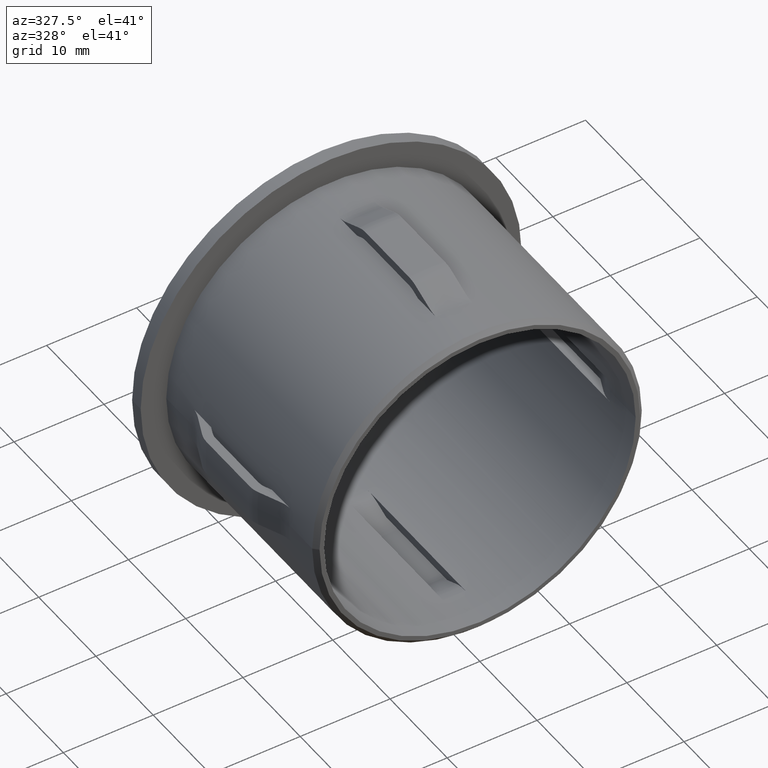
[diagram: clean part render]
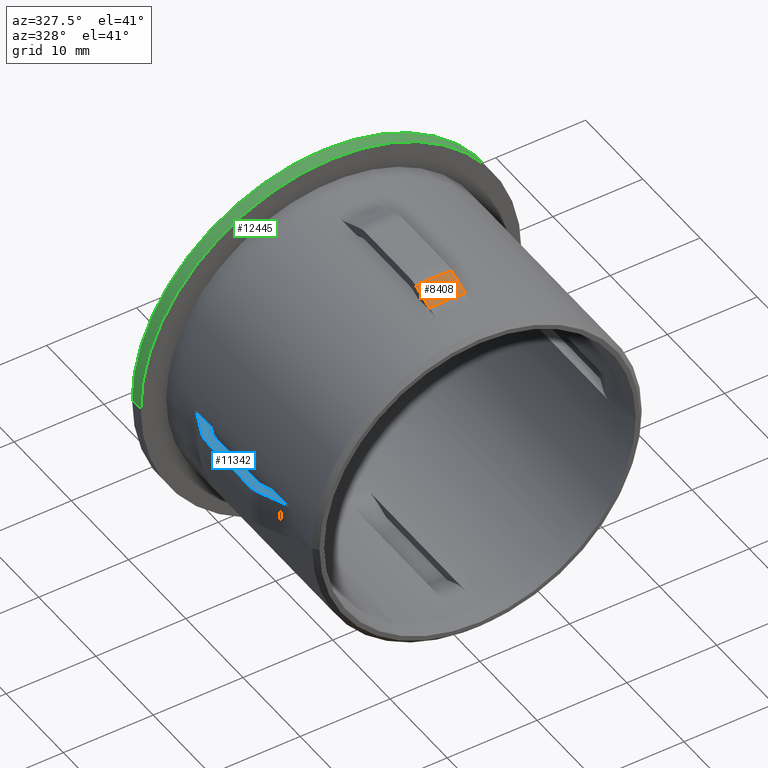
[diagram: same view with three faces highlighted in distinct colors, each labeled with its STEP entity id]
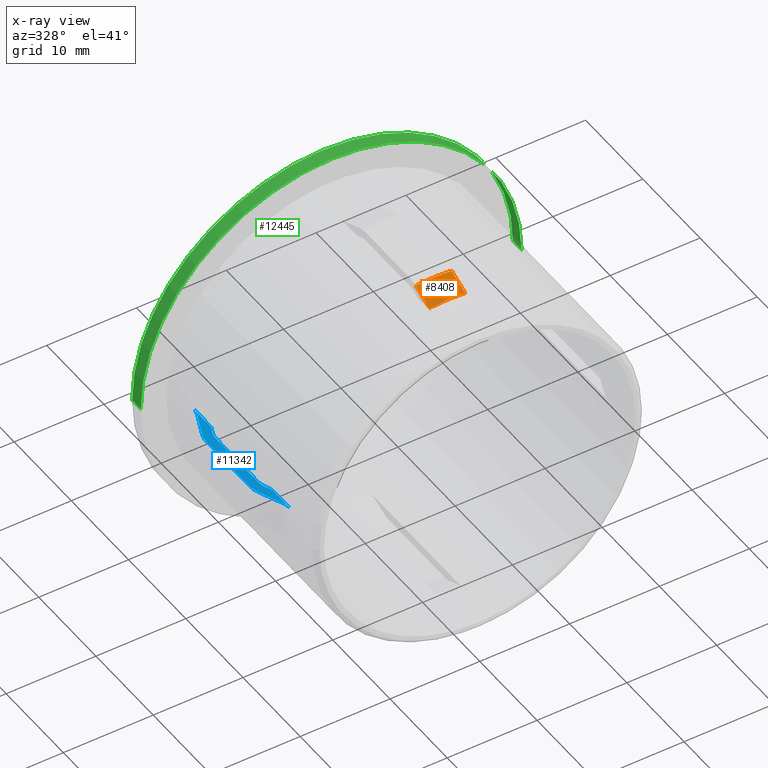
[diagram: x-ray of the same camera — body ghosted, the three highlighted faces saturated]
A machine part, auxiliary view with three faces highlighted in distinct colors.
The next image is the same camera in x-ray (body ghosted, the three faces saturated) — at least one of them is partly hidden behind the body in this view.
Their STEP definitions:

[orange] entity #8408 — the highlighted conical surface has half-angle 23.039 deg.
#112 = AXIS2_PLACEMENT_3D ( 'NONE', #11371, #1680, #2889 ) ;
#718 = DIRECTION ( 'NONE',  ( 1.421951005676655478E-15, -1.000000000000000000, -0.000000000000000000 ) ) ;
#753 = VERTEX_POINT ( 'NONE', #1503 ) ;
#1065 = CARTESIAN_POINT ( 'NONE',  ( 1.999999999999996669, 5.674048829954469575, 18.48137167821506921 ) ) ;
#1503 = CARTESIAN_POINT ( 'NONE',  ( -1.999999999999995337, 8.075951170045476246, 19.50847465759430577 ) ) ;
#1680 = DIRECTION ( 'NONE',  ( 1.421951005676655478E-15, -1.000000000000000000, -0.000000000000000000 ) ) ;
#1785 = CARTESIAN_POINT ( 'NONE',  ( 1.999999999999996669, 5.674048829954469575, 18.48137167821506921 ) ) ;
#2072 = CARTESIAN_POINT ( 'NONE',  ( -1.999999999999996225, 6.668400739142593459, 18.90667869736101281 ) ) ;
#2388 = DIRECTION ( 'NONE',  ( -1.421951005676655478E-15, 1.000000000000000000, 0.000000000000000000 ) ) ;
#2889 = DIRECTION ( 'NONE',  ( 1.000000000000000000, 1.399777768011121367E-15, 0.000000000000000000 ) ) ;
#4010 = AXIS2_PLACEMENT_3D ( 'NONE', #10321, #718, #8610 ) ;
#4263 = CARTESIAN_POINT ( 'NONE',  ( 1.999999999999995781, 7.372162904321253762, 19.20760720947872002 ) ) ;
#4347 = CARTESIAN_POINT ( 'NONE',  ( -1.999999999999996669, 5.674048829954464246, 18.48137167821506210 ) ) ;
#4803 = EDGE_CURVE ( 'NONE', #9766, #753, #11821, .T. ) ;
#4999 = ORIENTED_EDGE ( 'NONE', *, *, #8038, .T. ) ;
#5030 = AXIS2_PLACEMENT_3D ( 'NONE', #10912, #2388, #9606 ) ;
#5311 = CARTESIAN_POINT ( 'NONE',  ( 1.999999999999996669, 5.964668680227572573, 18.60567980440304936 ) ) ;
#5333 = ORIENTED_EDGE ( 'NONE', *, *, #15048, .F. ) ;
#5480 = CONICAL_SURFACE ( 'NONE', #5030, 18.58927376495193329, 0.4020977176402726339 ) ;
#6384 = CARTESIAN_POINT ( 'NONE',  ( -1.999999999999996669, 5.674048829954464246, 18.48137167821506210 ) ) ;
#6522 = B_SPLINE_CURVE_WITH_KNOTS ( 'NONE', 3,
 ( #15003, #8761, #2072, #15215, #7805, #15108, #4347 ),
 .UNSPECIFIED., .F., .F.,
 ( 4, 3, 4 ),
 ( 0.003137644363076629288, 0.005433848236068784116, 0.005749937470003458999 ),
 .UNSPECIFIED. ) ;
#7551 = FACE_OUTER_BOUND ( 'NONE', #11266, .T. ) ;
#7805 = CARTESIAN_POINT ( 'NONE',  ( -1.999999999999996669, 5.867794821283117912, 18.56424510787408266 ) ) ;
#8038 = EDGE_CURVE ( 'NONE', #753, #13363, #6522, .T. ) ;
#8408 = ADVANCED_FACE ( 'NONE', ( #7551 ), #5480, .T. ) ;
#8532 = EDGE_CURVE ( 'NONE', #9766, #15489, #12595, .T. ) ;
#8610 = DIRECTION ( 'NONE',  ( 1.000000000000000000, 1.415326249673741082E-15, 0.000000000000000000 ) ) ;
#8761 = CARTESIAN_POINT ( 'NONE',  ( -1.999999999999995781, 7.372162904321250210, 19.20760720947870936 ) ) ;
#9057 = CARTESIAN_POINT ( 'NONE',  ( 1.999999999999995337, 8.075951170045483352, 19.50847465759431287 ) ) ;
#9606 = DIRECTION ( 'NONE',  ( -1.000000000000000000, -1.399777768011120973E-15, 0.000000000000000000 ) ) ;
#9766 = VERTEX_POINT ( 'NONE', #15437 ) ;
#10150 = CARTESIAN_POINT ( 'NONE',  ( 1.999999999999996669, 5.770921533975759132, 18.52280907483744699 ) ) ;
#10321 = CARTESIAN_POINT ( 'NONE',  ( 3.615175180212620995E-14, 8.075951170045479799, 0.000000000000000000 ) ) ;
#10912 = CARTESIAN_POINT ( 'NONE',  ( 3.956713925015573178E-14, 5.674048829954466910, 0.000000000000000000 ) ) ;
#11266 = EDGE_LOOP ( 'NONE', ( #14867, #4999, #5333, #15157 ) ) ;
#11371 = CARTESIAN_POINT ( 'NONE',  ( 3.956713925015573178E-14, 5.674048829954466910, 0.000000000000000000 ) ) ;
#11821 = CIRCLE ( 'NONE', #4010, 19.61072623504798784 ) ;
#12595 = B_SPLINE_CURVE_WITH_KNOTS ( 'NONE', 3,
 ( #9057, #4263, #13671, #5311, #12696, #10150, #1785 ),
 .UNSPECIFIED., .F., .F.,
 ( 4, 3, 4 ),
 ( 0.003137644363076674391, 0.005433848236068830086, 0.005749937470003504102 ),
 .UNSPECIFIED. ) ;
#12696 = CARTESIAN_POINT ( 'NONE',  ( 1.999999999999996669, 5.867794821283123241, 18.56424510787408977 ) ) ;
#13108 = CIRCLE ( 'NONE', #112, 18.58927376495192973 ) ;
#13363 = VERTEX_POINT ( 'NONE', #6384 ) ;
#13671 = CARTESIAN_POINT ( 'NONE',  ( 1.999999999999996225, 6.668400739142598788, 18.90667869736101991 ) ) ;
#14867 = ORIENTED_EDGE ( 'NONE', *, *, #4803, .T. ) ;
#15003 = CARTESIAN_POINT ( 'NONE',  ( -1.999999999999995337, 8.075951170045476246, 19.50847465759430577 ) ) ;
#15048 = EDGE_CURVE ( 'NONE', #15489, #13363, #13108, .T. ) ;
#15108 = CARTESIAN_POINT ( 'NONE',  ( -1.999999999999996669, 5.770921533975755580, 18.52280907483743988 ) ) ;
#15157 = ORIENTED_EDGE ( 'NONE', *, *, #8532, .F. ) ;
#15215 = CARTESIAN_POINT ( 'NONE',  ( -1.999999999999996669, 5.964668680227568132, 18.60567980440304581 ) ) ;
#15437 = CARTESIAN_POINT ( 'NONE',  ( 1.999999999999995337, 8.075951170045483352, 19.50847465759431287 ) ) ;
#15489 = VERTEX_POINT ( 'NONE', #1065 ) ;

[blue] entity #11342 — the highlighted planar face has unit normal (0, -0, 1).
#399 = CARTESIAN_POINT ( 'NONE',  ( -19.74898731580938716, 9.249999999999959144, 2.000000000000002665 ) ) ;
#523 = ORIENTED_EDGE ( 'NONE', *, *, #12520, .F. ) ;
#548 = CARTESIAN_POINT ( 'NONE',  ( -18.24068255301867580, 7.666666666666585250, 2.000000000000002220 ) ) ;
#596 = CARTESIAN_POINT ( 'NONE',  ( -18.24068255301867580, 7.666666666666585250, 2.000000000000002220 ) ) ;
#751 = CARTESIAN_POINT ( 'NONE',  ( -18.40196181779527862, 20.51159622817793959, 2.000000000000001776 ) ) ;
#828 = ORIENTED_EDGE ( 'NONE', *, *, #14185, .F. ) ;
#895 = EDGE_CURVE ( 'NONE', #1686, #14210, #14705, .T. ) ;
#1006 = CARTESIAN_POINT ( 'NONE',  ( -18.58316975146610517, 8.467300780030255325, 2.000000000000002220 ) ) ;
#1028 = CARTESIAN_POINT ( 'NONE',  ( -18.48137167821506921, 20.32595117004545315, 2.000000000000002220 ) ) ;
#1172 = B_SPLINE_CURVE_WITH_KNOTS ( 'NONE', 3,
 ( #6437, #12398, #4033, #14787, #14844, #2695 ),
 .UNSPECIFIED., .F., .F.,
 ( 4, 2, 4 ),
 ( 0.01851716384993861916, 0.01911706737207306134, 0.01971697089420750004 ),
 .UNSPECIFIED. ) ;
#1308 = CARTESIAN_POINT ( 'NONE',  ( -18.63544483199895652, 17.41048235607943084, 2.000000000000001776 ) ) ;
#1573 = EDGE_CURVE ( 'NONE', #2539, #8910, #1865, .T. ) ;
#1686 = VERTEX_POINT ( 'NONE', #9059 ) ;
#1865 = LINE ( 'NONE', #14980, #4081 ) ;
#1988 = CARTESIAN_POINT ( 'NONE',  ( -18.26123782898623915, 21.09733350163308074, 2.000000000000002220 ) ) ;
#2164 = B_SPLINE_CURVE_WITH_KNOTS ( 'NONE', 3,
 ( #3278, #11658, #11930, #8386, #14308, #8282, #2328 ),
 .UNSPECIFIED., .F., .F.,
 ( 4, 3, 4 ),
 ( 0.003980612247854684385, 0.004529135042152863770, 0.004851423612738308550 ),
 .UNSPECIFIED. ) ;
#2200 = EDGE_CURVE ( 'NONE', #11920, #3648, #8970, .T. ) ;
#2245 = EDGE_CURVE ( 'NONE', #4894, #14210, #15155, .T. ) ;
#2254 = CARTESIAN_POINT ( 'NONE',  ( -18.48137167821506921, 20.32595117004545315, 2.000000000000002220 ) ) ;
#2328 = CARTESIAN_POINT ( 'NONE',  ( -18.58316975146605188, 17.53269921996961145, 2.000000000000002220 ) ) ;
#2374 = B_SPLINE_CURVE_WITH_KNOTS ( 'NONE', 3,
 ( #2798, #11224, #8662, #7647, #9802, #2641 ),
 .UNSPECIFIED., .F., .F.,
 ( 4, 2, 4 ),
 ( 0.01864550276516610192, 0.01924523204796784598, 0.01984496133076958657 ),
 .UNSPECIFIED. ) ;
#2539 = VERTEX_POINT ( 'NONE', #548 ) ;
#2599 = CARTESIAN_POINT ( 'NONE',  ( -18.74359890736030820, 16.88383845180235454, 2.000000000000002220 ) ) ;
#2641 = CARTESIAN_POINT ( 'NONE',  ( -18.48137167821503013, 5.674048829954442041, 2.000000000000002220 ) ) ;
#2695 = CARTESIAN_POINT ( 'NONE',  ( -19.50847465759430577, 17.92404882995444027, 2.000000000000002665 ) ) ;
#2798 = CARTESIAN_POINT ( 'NONE',  ( -18.24068255301859764, 4.499999999999946709, 2.000000000000003109 ) ) ;
#2825 = DIRECTION ( 'NONE',  ( 1.421951005676655281E-15, -1.000000000000000000, -0.000000000000000000 ) ) ;
#2834 = DIRECTION ( 'NONE',  ( -6.320148377769856353E-16, -1.000000000000000000, 0.000000000000000000 ) ) ;
#3220 = CARTESIAN_POINT ( 'NONE',  ( -19.74898731580938005, 16.75000000000000000, 2.000000000000002665 ) ) ;
#3272 = B_SPLINE_CURVE_WITH_KNOTS ( 'NONE', 3,
 ( #11422, #12486, #7737, #596 ),
 .UNSPECIFIED., .F., .F.,
 ( 4, 4 ),
 ( 0.003654759251242202436, 0.004525570624175848621 ),
 .UNSPECIFIED. ) ;
#3278 = CARTESIAN_POINT ( 'NONE',  ( -18.24068255301866159, 18.33333333333319715, 2.000000000000002220 ) ) ;
#3385 = LINE ( 'NONE', #14726, #12570 ) ;
#3648 = VERTEX_POINT ( 'NONE', #13458 ) ;
#3818 = EDGE_CURVE ( 'NONE', #10907, #4954, #13844, .T. ) ;
#3882 = ORIENTED_EDGE ( 'NONE', *, *, #2245, .T. ) ;
#3940 = CARTESIAN_POINT ( 'NONE',  ( -19.58776479706034479, 8.261426435293875770, 2.000000000000002665 ) ) ;
#4033 = CARTESIAN_POINT ( 'NONE',  ( -19.72817700442065814, 17.15493269750312066, 2.000000000000002665 ) ) ;
#4081 = VECTOR ( 'NONE', #13721, 1000.000000000000000 ) ;
#4515 = ORIENTED_EDGE ( 'NONE', *, *, #11420, .F. ) ;
#4639 = CARTESIAN_POINT ( 'NONE',  ( -18.74359890736030465, 16.74999999999994671, 2.000000000000002220 ) ) ;
#4658 = ORIENTED_EDGE ( 'NONE', *, *, #10397, .F. ) ;
#4894 = VERTEX_POINT ( 'NONE', #3220 ) ;
#4954 = VERTEX_POINT ( 'NONE', #15134 ) ;
#4981 = CARTESIAN_POINT ( 'NONE',  ( -18.74359890736030465, 16.74999999999994671, 2.000000000000002220 ) ) ;
#5127 = CARTESIAN_POINT ( 'NONE',  ( -19.64853172576004070, 8.456395648387072583, 2.000000000000002665 ) ) ;
#5251 = ORIENTED_EDGE ( 'NONE', *, *, #12448, .F. ) ;
#5269 = ORIENTED_EDGE ( 'NONE', *, *, #8511, .F. ) ;
#5459 = CARTESIAN_POINT ( 'NONE',  ( -18.48137167821506921, 20.32595117004545315, 2.000000000000002220 ) ) ;
#5763 = CARTESIAN_POINT ( 'NONE',  ( -18.77959847133323024, 6.371294818785595560, 2.000000000000002220 ) ) ;
#6232 = CARTESIAN_POINT ( 'NONE',  ( -18.58316975146605188, 17.53269921996961145, 2.000000000000002220 ) ) ;
#6346 = CARTESIAN_POINT ( 'NONE',  ( -18.74359890736028689, 9.250000000000001776, 2.000000000000002220 ) ) ;
#6437 = CARTESIAN_POINT ( 'NONE',  ( -19.74898731580938005, 16.75000000000000000, 2.000000000000002665 ) ) ;
#6875 = CARTESIAN_POINT ( 'NONE',  ( -19.50847465759427379, 8.075951170045449601, 2.000000000000002665 ) ) ;
#6963 = FACE_OUTER_BOUND ( 'NONE', #14692, .T. ) ;
#6977 = CARTESIAN_POINT ( 'NONE',  ( -19.12197610809779391, 7.171924667065202819, 2.000000000000002220 ) ) ;
#7005 = DIRECTION ( 'NONE',  ( 1.000000000000000000, 0.000000000000000000, -1.466047142671333736E-16 ) ) ;
#7022 = EDGE_CURVE ( 'NONE', #4954, #7822, #3385, .T. ) ;
#7346 = ORIENTED_EDGE ( 'NONE', *, *, #11037, .F. ) ;
#7377 = ORIENTED_EDGE ( 'NONE', *, *, #7714, .F. ) ;
#7545 = CARTESIAN_POINT ( 'NONE',  ( -19.74898731580931965, 9.048154354290852908, 2.000000000000002665 ) ) ;
#7627 = VERTEX_POINT ( 'NONE', #1006 ) ;
#7647 = CARTESIAN_POINT ( 'NONE',  ( -18.34183762337040235, 5.295725348027575663, 2.000000000000002220 ) ) ;
#7714 = EDGE_CURVE ( 'NONE', #15068, #1686, #13673, .T. ) ;
#7737 = CARTESIAN_POINT ( 'NONE',  ( -18.35485551846462826, 7.933540184405585727, 2.000000000000002220 ) ) ;
#7787 = CARTESIAN_POINT ( 'NONE',  ( -18.34148331105510366, 20.70555644726650257, 2.000000000000002665 ) ) ;
#7822 = VERTEX_POINT ( 'NONE', #13279 ) ;
#7886 = CARTESIAN_POINT ( 'NONE',  ( -19.50847465759430577, 17.92404882995444027, 2.000000000000002665 ) ) ;
#8227 = DIRECTION ( 'NONE',  ( 1.466047142671333736E-16, -9.265635470488363048E-32, 1.000000000000000000 ) ) ;
#8282 = CARTESIAN_POINT ( 'NONE',  ( -18.54092191755089303, 17.63147281753517248, 2.000000000000002220 ) ) ;
#8386 = CARTESIAN_POINT ( 'NONE',  ( -18.45642203740839093, 17.82901821092404049, 2.000000000000002220 ) ) ;
#8511 = EDGE_CURVE ( 'NONE', #7627, #2539, #3272, .T. ) ;
#8518 = CARTESIAN_POINT ( 'NONE',  ( -18.67595762585143504, 17.28152126477995054, 2.000000000000002665 ) ) ;
#8662 = CARTESIAN_POINT ( 'NONE',  ( -18.26142087374104861, 4.904005217764159319, 2.000000000000002665 ) ) ;
#8707 = AXIS2_PLACEMENT_3D ( 'NONE', #14159, #8227, #7005 ) ;
#8730 = CARTESIAN_POINT ( 'NONE',  ( -19.74898731580938716, 9.249999999999959144, 2.000000000000002665 ) ) ;
#8828 = CARTESIAN_POINT ( 'NONE',  ( -18.67623955027541172, 8.719520459361548959, 2.000000000000002220 ) ) ;
#8834 = B_SPLINE_CURVE_WITH_KNOTS ( 'NONE', 3,
 ( #6346, #10030, #14860, #8828, #8883, #12310 ),
 .UNSPECIFIED., .F., .F.,
 ( 4, 2, 4 ),
 ( 0.01188164108396582569, 0.01228023246994236310, 0.01267882385591890052 ),
 .UNSPECIFIED. ) ;
#8883 = CARTESIAN_POINT ( 'NONE',  ( -18.63570159540581272, 8.590117945594379023, 2.000000000000002220 ) ) ;
#8910 = VERTEX_POINT ( 'NONE', #13907 ) ;
#8970 = LINE ( 'NONE', #9777, #11609 ) ;
#9059 = CARTESIAN_POINT ( 'NONE',  ( -19.50847465759427379, 8.075951170045449601, 2.000000000000002665 ) ) ;
#9156 = B_SPLINE_CURVE_WITH_KNOTS ( 'NONE', 3,
 ( #13062, #14157, #11928, #9534, #10533, #11811, #1028 ),
 .UNSPECIFIED., .F., .F.,
 ( 4, 3, 4 ),
 ( 0.005063331775486804021, 0.005433848210710321390, 0.007675624897258776641 ),
 .UNSPECIFIED. ) ;
#9534 = CARTESIAN_POINT ( 'NONE',  ( -19.36282554071120288, 18.26473749683830050, 2.000000000000002665 ) ) ;
#9559 = CARTESIAN_POINT ( 'NONE',  ( -19.74898731580935873, 51.10085858040561391, 2.000000000000002665 ) ) ;
#9716 = VECTOR ( 'NONE', #14173, 1000.000000000000000 ) ;
#9777 = CARTESIAN_POINT ( 'NONE',  ( -18.74359890736031886, 31.99999999999996447, 2.000000000000002220 ) ) ;
#9802 = CARTESIAN_POINT ( 'NONE',  ( -18.40180171427111944, 5.488029480419283068, 2.000000000000002220 ) ) ;
#9902 = ORIENTED_EDGE ( 'NONE', *, *, #7022, .F. ) ;
#9907 = CARTESIAN_POINT ( 'NONE',  ( -19.50847465759427379, 8.075951170045449601, 2.000000000000002665 ) ) ;
#9999 = CARTESIAN_POINT ( 'NONE',  ( -18.48137167821503013, 5.674048829954442041, 2.000000000000002220 ) ) ;
#10030 = CARTESIAN_POINT ( 'NONE',  ( -18.74359890736028333, 9.117034382552956728, 2.000000000000001776 ) ) ;
#10397 = EDGE_CURVE ( 'NONE', #10696, #10907, #9156, .T. ) ;
#10533 = CARTESIAN_POINT ( 'NONE',  ( -19.06907008838620499, 18.95183544605737325, 2.000000000000002665 ) ) ;
#10696 = VERTEX_POINT ( 'NONE', #7886 ) ;
#10709 = ORIENTED_EDGE ( 'NONE', *, *, #2200, .F. ) ;
#10907 = VERTEX_POINT ( 'NONE', #2254 ) ;
#11037 = EDGE_CURVE ( 'NONE', #12321, #11920, #14301, .T. ) ;
#11224 = CARTESIAN_POINT ( 'NONE',  ( -18.24068255301859409, 4.701961065905551074, 2.000000000000001776 ) ) ;
#11342 = ADVANCED_FACE ( 'NONE', ( #6963 ), #12805, .T. ) ;
#11420 = EDGE_CURVE ( 'NONE', #7822, #12321, #2164, .T. ) ;
#11422 = CARTESIAN_POINT ( 'NONE',  ( -18.58316975146610517, 8.467300780030255325, 2.000000000000002220 ) ) ;
#11609 = VECTOR ( 'NONE', #2825, 1000.000000000000000 ) ;
#11658 = CARTESIAN_POINT ( 'NONE',  ( -18.31259993548924569, 18.16523009828516422, 2.000000000000002220 ) ) ;
#11811 = CARTESIAN_POINT ( 'NONE',  ( -18.77525510737133985, 19.63890794894573588, 2.000000000000002220 ) ) ;
#11920 = VERTEX_POINT ( 'NONE', #4639 ) ;
#11928 = CARTESIAN_POINT ( 'NONE',  ( -19.41137686399182627, 18.15117529945963781, 2.000000000000002665 ) ) ;
#11930 = CARTESIAN_POINT ( 'NONE',  ( -18.38451304774623907, 17.99712503630838611, 2.000000000000002220 ) ) ;
#12050 = CARTESIAN_POINT ( 'NONE',  ( -18.72994375718851501, 17.01857741280062442, 2.000000000000002220 ) ) ;
#12310 = CARTESIAN_POINT ( 'NONE',  ( -18.58316975146610517, 8.467300780030255325, 2.000000000000002220 ) ) ;
#12321 = VERTEX_POINT ( 'NONE', #15428 ) ;
#12398 = CARTESIAN_POINT ( 'NONE',  ( -19.74898731580933742, 16.95174087095297821, 2.000000000000002665 ) ) ;
#12448 = EDGE_CURVE ( 'NONE', #4894, #10696, #1172, .T. ) ;
#12486 = CARTESIAN_POINT ( 'NONE',  ( -18.46901772373885819, 8.200418305755775350, 2.000000000000002220 ) ) ;
#12520 = EDGE_CURVE ( 'NONE', #8910, #15068, #2374, .T. ) ;
#12570 = VECTOR ( 'NONE', #2834, 1000.000000000000000 ) ;
#12805 = PLANE ( 'NONE',  #8707 ) ;
#13041 = ORIENTED_EDGE ( 'NONE', *, *, #895, .F. ) ;
#13062 = CARTESIAN_POINT ( 'NONE',  ( -19.50847465759430577, 17.92404882995444027, 2.000000000000002665 ) ) ;
#13279 = CARTESIAN_POINT ( 'NONE',  ( -18.24068255301866159, 18.33333333333319715, 2.000000000000002220 ) ) ;
#13458 = CARTESIAN_POINT ( 'NONE',  ( -18.74359890736028689, 9.250000000000001776, 2.000000000000002220 ) ) ;
#13521 = ORIENTED_EDGE ( 'NONE', *, *, #1573, .F. ) ;
#13673 = B_SPLINE_CURVE_WITH_KNOTS ( 'NONE', 3,
 ( #15432, #15332, #5763, #14181, #6977, #14074, #6875 ),
 .UNSPECIFIED., .F., .F.,
 ( 4, 3, 4 ),
 ( 0.004296326807725162414, 0.005433848288166688231, 0.006908619882035895235 ),
 .UNSPECIFIED. ) ;
#13721 = DIRECTION ( 'NONE',  ( -6.320148377769856353E-16, -1.000000000000000000, 0.000000000000000000 ) ) ;
#13772 = CARTESIAN_POINT ( 'NONE',  ( -18.24068255301866515, 21.49999999999999289, 2.000000000000002220 ) ) ;
#13844 = B_SPLINE_CURVE_WITH_KNOTS ( 'NONE', 3,
 ( #5459, #751, #7787, #1988, #13985, #13772 ),
 .UNSPECIFIED., .F., .F.,
 ( 4, 2, 4 ),
 ( 0.01864115322806291289, 0.01924089754622534953, 0.01984064186438778271 ),
 .UNSPECIFIED. ) ;
#13907 = CARTESIAN_POINT ( 'NONE',  ( -18.24068255301859764, 4.499999999999946709, 2.000000000000003109 ) ) ;
#13985 = CARTESIAN_POINT ( 'NONE',  ( -18.24068255301863672, 21.29764224660666372, 2.000000000000002220 ) ) ;
#14074 = CARTESIAN_POINT ( 'NONE',  ( -19.31523799515158402, 7.623932527328648234, 2.000000000000002665 ) ) ;
#14157 = CARTESIAN_POINT ( 'NONE',  ( -19.45992655757145329, 18.03761240532057641, 2.000000000000002665 ) ) ;
#14159 = CARTESIAN_POINT ( 'NONE',  ( 3.258971027449399537E-14, 51.10085858040559970, 1.999999999999999556 ) ) ;
#14173 = DIRECTION ( 'NONE',  ( -6.320148377769856353E-16, -1.000000000000000000, 0.000000000000000000 ) ) ;
#14181 = CARTESIAN_POINT ( 'NONE',  ( -18.92868661151429066, 6.719928614443029247, 2.000000000000002220 ) ) ;
#14185 = EDGE_CURVE ( 'NONE', #3648, #7627, #8834, .T. ) ;
#14210 = VERTEX_POINT ( 'NONE', #8730 ) ;
#14301 = B_SPLINE_CURVE_WITH_KNOTS ( 'NONE', 3,
 ( #6232, #1308, #8518, #12050, #2599, #4981 ),
 .UNSPECIFIED., .F., .F.,
 ( 4, 2, 4 ),
 ( 0.01185186478693516128, 0.01225056385146115930, 0.01264926291598715731 ),
 .UNSPECIFIED. ) ;
#14308 = CARTESIAN_POINT ( 'NONE',  ( -18.49867268914834284, 17.73024581865719540, 2.000000000000002220 ) ) ;
#14692 = EDGE_LOOP ( 'NONE', ( #4658, #5251, #3882, #13041, #7377, #523, #13521, #5269, #828, #10709, #7346, #4515, #9902, #15516 ) ) ;
#14705 = B_SPLINE_CURVE_WITH_KNOTS ( 'NONE', 3,
 ( #9907, #3940, #5127, #14848, #7545, #399 ),
 .UNSPECIFIED., .F., .F.,
 ( 4, 2, 4 ),
 ( 0.01853358041015696484, 0.01913350073999930956, 0.01973342106984165775 ),
 .UNSPECIFIED. ) ;
#14726 = CARTESIAN_POINT ( 'NONE',  ( -18.24068255301865094, 51.10085858040561391, 2.000000000000002220 ) ) ;
#14787 = CARTESIAN_POINT ( 'NONE',  ( -19.64742017109710304, 17.54765186595333404, 2.000000000000002220 ) ) ;
#14844 = CARTESIAN_POINT ( 'NONE',  ( -19.58775311394401086, 17.73860089381808436, 2.000000000000002665 ) ) ;
#14848 = CARTESIAN_POINT ( 'NONE',  ( -19.72871889727133521, 8.849088672912388986, 2.000000000000002220 ) ) ;
#14860 = CARTESIAN_POINT ( 'NONE',  ( -18.73006058103203841, 8.982325460465478528, 2.000000000000002665 ) ) ;
#14980 = CARTESIAN_POINT ( 'NONE',  ( -18.24068255301865094, 51.10085858040561391, 2.000000000000002220 ) ) ;
#15068 = VERTEX_POINT ( 'NONE', #9999 ) ;
#15134 = CARTESIAN_POINT ( 'NONE',  ( -18.24068255301866515, 21.49999999999999289, 2.000000000000002220 ) ) ;
#15155 = LINE ( 'NONE', #9559, #9716 ) ;
#15332 = CARTESIAN_POINT ( 'NONE',  ( -18.63049390001474492, 6.022668049135877943, 2.000000000000002220 ) ) ;
#15428 = CARTESIAN_POINT ( 'NONE',  ( -18.58316975146605188, 17.53269921996961145, 2.000000000000002220 ) ) ;
#15432 = CARTESIAN_POINT ( 'NONE',  ( -18.48137167821503013, 5.674048829954442041, 2.000000000000002220 ) ) ;
#15516 = ORIENTED_EDGE ( 'NONE', *, *, #3818, .F. ) ;

[green] entity #12445 — the highlighted cylindrical surface (partial cylindrical patch) has radius 21.2 mm, axis along (0, -1, -0).
#1310 = EDGE_LOOP ( 'NONE', ( #8823, #4260, #8825, #11656 ) ) ;
#1551 = CARTESIAN_POINT ( 'NONE',  ( 2.132926508514975230E-15, 31.99999999999999289, 0.000000000000000000 ) ) ;
#1559 = CIRCLE ( 'NONE', #9670, 21.19999999999998863 ) ;
#1867 = VERTEX_POINT ( 'NONE', #5138 ) ;
#2166 = CARTESIAN_POINT ( 'NONE',  ( 8.531706034059959296E-15, 27.49999999999996803, 0.000000000000000000 ) ) ;
#2867 = CARTESIAN_POINT ( 'NONE',  ( -21.19999999999998508, 31.99999999999996447, 2.596251214192387586E-15 ) ) ;
#3146 = EDGE_CURVE ( 'NONE', #11943, #13697, #13419, .T. ) ;
#3798 = CARTESIAN_POINT ( 'NONE',  ( 21.19999999999999218, 32.00000000000002132, 0.000000000000000000 ) ) ;
#3990 = AXIS2_PLACEMENT_3D ( 'NONE', #1551, #7597, #8810 ) ;
#4260 = ORIENTED_EDGE ( 'NONE', *, *, #8816, .T. ) ;
#4379 = DIRECTION ( 'NONE',  ( 1.000000000000000000, 1.472878422999176657E-15, 0.000000000000000000 ) ) ;
#4494 = DIRECTION ( 'NONE',  ( 1.421951005676655478E-15, -1.000000000000000000, -0.000000000000000000 ) ) ;
#4536 = CARTESIAN_POINT ( 'NONE',  ( 21.19999999999998863, 27.50000000000000000, 0.000000000000000000 ) ) ;
#5138 = CARTESIAN_POINT ( 'NONE',  ( -21.19999999999997797, 25.99999999999993605, 2.596251214192387586E-15 ) ) ;
#5232 = DIRECTION ( 'NONE',  ( 1.421951005676655281E-15, -1.000000000000000000, -0.000000000000000000 ) ) ;
#5994 = CYLINDRICAL_SURFACE ( 'NONE', #3990, 21.19999999999998863 ) ;
#7295 = EDGE_CURVE ( 'NONE', #11270, #1867, #1559, .T. ) ;
#7597 = DIRECTION ( 'NONE',  ( 1.421951005676655478E-15, -1.000000000000000000, -0.000000000000000000 ) ) ;
#7799 = CARTESIAN_POINT ( 'NONE',  ( 21.19999999999999929, 26.00000000000000000, 0.000000000000000000 ) ) ;
#8003 = DIRECTION ( 'NONE',  ( 1.000000000000000000, 1.472878422999176657E-15, 0.000000000000000000 ) ) ;
#8223 = AXIS2_PLACEMENT_3D ( 'NONE', #2166, #4494, #8003 ) ;
#8436 = CARTESIAN_POINT ( 'NONE',  ( -21.20000000000003126, 27.49999999999993605, 2.596251214192386797E-15 ) ) ;
#8810 = DIRECTION ( 'NONE',  ( 1.000000000000000000, 1.309225264888156919E-15, 0.000000000000000000 ) ) ;
#8816 = EDGE_CURVE ( 'NONE', #13697, #1867, #13216, .T. ) ;
#8823 = ORIENTED_EDGE ( 'NONE', *, *, #3146, .T. ) ;
#8825 = ORIENTED_EDGE ( 'NONE', *, *, #7295, .F. ) ;
#9317 = CARTESIAN_POINT ( 'NONE',  ( 1.066463254257494399E-14, 25.99999999999996803, 0.000000000000000000 ) ) ;
#9670 = AXIS2_PLACEMENT_3D ( 'NONE', #9317, #10471, #4379 ) ;
#10471 = DIRECTION ( 'NONE',  ( 1.421951005676655478E-15, -1.000000000000000000, -0.000000000000000000 ) ) ;
#11270 = VERTEX_POINT ( 'NONE', #7799 ) ;
#11649 = LINE ( 'NONE', #3798, #12949 ) ;
#11656 = ORIENTED_EDGE ( 'NONE', *, *, #14140, .F. ) ;
#11943 = VERTEX_POINT ( 'NONE', #4536 ) ;
#12445 = ADVANCED_FACE ( 'NONE', ( #13895 ), #5994, .T. ) ;
#12949 = VECTOR ( 'NONE', #14651, 1000.000000000000000 ) ;
#13216 = LINE ( 'NONE', #2867, #13592 ) ;
#13419 = CIRCLE ( 'NONE', #8223, 21.19999999999998863 ) ;
#13592 = VECTOR ( 'NONE', #5232, 1000.000000000000000 ) ;
#13697 = VERTEX_POINT ( 'NONE', #8436 ) ;
#13895 = FACE_OUTER_BOUND ( 'NONE', #1310, .T. ) ;
#14140 = EDGE_CURVE ( 'NONE', #11943, #11270, #11649, .T. ) ;
#14651 = DIRECTION ( 'NONE',  ( 1.421951005676655281E-15, -1.000000000000000000, -0.000000000000000000 ) ) ;